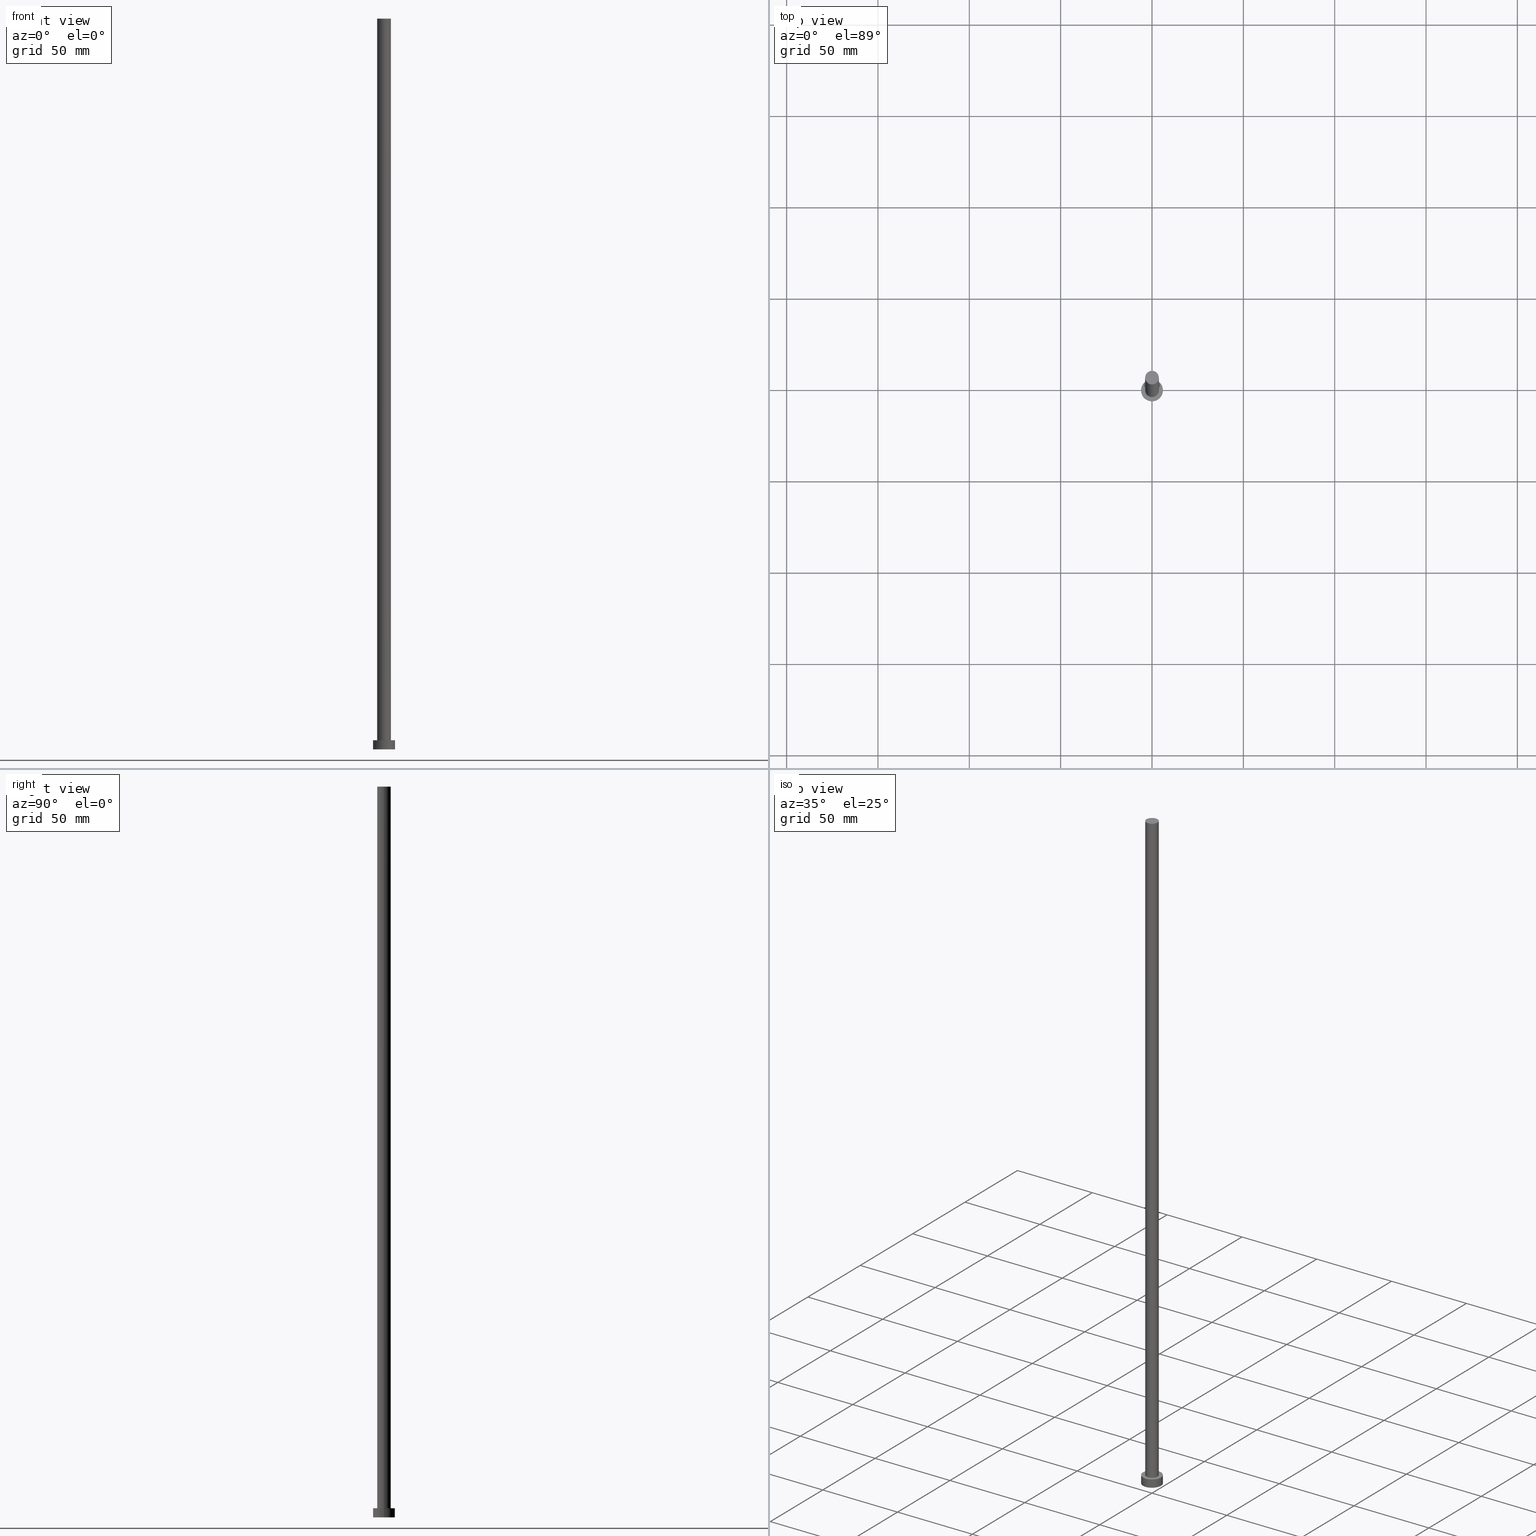
[diagram: canonical four-view strip — front | top / right | iso, engineering-drawing reading convention]
A machine part, canonical four-view strip (front | top / right | iso — engineering-drawing reading convention). The complete STEP part file that produces these views, byte-faithful:
ISO-10303-21;
HEADER;
FILE_DESCRIPTION (( 'STEP AP203' ),
    '1' );
FILE_NAME ('0a37.STEP',
    '2023-02-13T13:34:06',
    ( '' ),
    ( '' ),
    'SwSTEP 2.0',
    'SolidWorks 2019',
    '' );
FILE_SCHEMA (( 'CONFIG_CONTROL_DESIGN' ));
ENDSEC;

DATA;
#1 = EDGE_CURVE ( 'NONE', #59, #103, #189, .T. ) ;
#2 = APPLICATION_CONTEXT ( 'configuration controlled 3d designs of mechanical parts and assemblies' ) ;
#3 = EDGE_CURVE ( 'NONE', #103, #251, #114, .T. ) ;
#4 = CARTESIAN_POINT ( 'NONE',  ( 6.000000000000000888, 7.347880794884120722E-16, 5.000000000000000000 ) ) ;
#5 = LOCAL_TIME ( 14, 34, 6.000000000000000000, #243 ) ;
#6 = CARTESIAN_POINT ( 'NONE',  ( 0.000000000000000000, 0.000000000000000000, 400.0000000000000000 ) ) ;
#7 = DIRECTION ( 'NONE',  ( 1.000000000000000000, 0.000000000000000000, -0.000000000000000000 ) ) ;
#8 = FACE_OUTER_BOUND ( 'NONE', #28, .T. ) ;
#9 = APPROVAL ( #135, 'NEUR�EN�' ) ;
#10 = PERSON_AND_ORGANIZATION ( #115, #217 ) ;
#11 = ORIENTED_EDGE ( 'NONE', *, *, #215, .F. ) ;
#12 = PERSON_AND_ORGANIZATION ( #115, #217 ) ;
#13 = DIRECTION ( 'NONE',  ( 1.000000000000000000, 0.000000000000000000, 0.000000000000000000 ) ) ;
#14 = ORIENTED_EDGE ( 'NONE', *, *, #215, .T. ) ;
#15 = EDGE_LOOP ( 'NONE', ( #209, #90, #14, #186 ) ) ;
#16 = EDGE_CURVE ( 'NONE', #59, #120, #242, .T. ) ;
#17 = APPROVAL_DATE_TIME ( #195, #9 ) ;
#18 = SHAPE_DEFINITION_REPRESENTATION ( #155, #164 ) ;
#19 = CIRCLE ( 'NONE', #235, 3.750000000000000000 ) ;
#20 = CC_DESIGN_PERSON_AND_ORGANIZATION_ASSIGNMENT ( #127, #188, ( #96 ) ) ;
#21 = DIRECTION ( 'NONE',  ( 0.000000000000000000, 0.000000000000000000, 1.000000000000000000 ) ) ;
#22 = CARTESIAN_POINT ( 'NONE',  ( 6.000000000000000888, 7.347880794884120722E-16, 0.000000000000000000 ) ) ;
#23 = DIRECTION ( 'NONE',  ( -0.000000000000000000, -0.000000000000000000, -1.000000000000000000 ) ) ;
#24 = LOCAL_TIME ( 14, 34, 6.000000000000000000, #133 ) ;
#25 = EDGE_CURVE ( 'NONE', #253, #182, #187, .T. ) ;
#26 = DIRECTION ( 'NONE',  ( -0.000000000000000000, -0.000000000000000000, -1.000000000000000000 ) ) ;
#27 = CARTESIAN_POINT ( 'NONE',  ( 0.000000000000000000, 0.000000000000000000, 5.000000000000000000 ) ) ;
#28 = EDGE_LOOP ( 'NONE', ( #244, #124, #58, #11 ) ) ;
#29 = CC_DESIGN_APPROVAL ( #67, ( #96 ) ) ;
#30 = APPROVAL_ROLE ( '' ) ;
#31 = EDGE_CURVE ( 'NONE', #251, #103, #88, .T. ) ;
#32 = COORDINATED_UNIVERSAL_TIME_OFFSET ( 1, 0, .AHEAD. ) ;
#33 = DIRECTION ( 'NONE',  ( -0.000000000000000000, -0.000000000000000000, -1.000000000000000000 ) ) ;
#34 =( NAMED_UNIT ( * ) SI_UNIT ( $, .STERADIAN. ) SOLID_ANGLE_UNIT ( ) );
#35 = EDGE_LOOP ( 'NONE', ( #128, #225, #212, #72 ) ) ;
#36 = AXIS2_PLACEMENT_3D ( 'NONE', #141, #44, #158 ) ;
#37 = DIRECTION ( 'NONE',  ( 0.000000000000000000, 0.000000000000000000, 1.000000000000000000 ) ) ;
#38 = APPROVAL_PERSON_ORGANIZATION ( #216, #9, #233 ) ;
#39 = AXIS2_PLACEMENT_3D ( 'NONE', #27, #163, #7 ) ;
#40 = CC_DESIGN_APPROVAL ( #206, ( #179 ) ) ;
#41 = EDGE_CURVE ( 'NONE', #54, #110, #84, .T. ) ;
#42 = CARTESIAN_POINT ( 'NONE',  ( 0.000000000000000000, 0.000000000000000000, 400.0000000000000000 ) ) ;
#43 = AXIS2_PLACEMENT_3D ( 'NONE', #148, #208, #13 ) ;
#44 = DIRECTION ( 'NONE',  ( -0.000000000000000000, -0.000000000000000000, -1.000000000000000000 ) ) ;
#45 = CC_DESIGN_DATE_AND_TIME_ASSIGNMENT ( #113, #138, ( #95 ) ) ;
#46 = DIRECTION ( 'NONE',  ( 0.000000000000000000, 0.000000000000000000, 1.000000000000000000 ) ) ;
#47 = DIRECTION ( 'NONE',  ( 1.000000000000000000, 0.000000000000000000, -0.000000000000000000 ) ) ;
#48 = DIRECTION ( 'NONE',  ( 1.000000000000000000, 0.000000000000000000, 0.000000000000000000 ) ) ;
#49 = ORIENTED_EDGE ( 'NONE', *, *, #41, .T. ) ;
#50 = EDGE_CURVE ( 'NONE', #54, #253, #175, .T. ) ;
#51 = CALENDAR_DATE ( 2023, 13, 2 ) ;
#52 = AXIS2_PLACEMENT_3D ( 'NONE', #122, #26, #85 ) ;
#53 = APPROVAL_DATE_TIME ( #227, #67 ) ;
#54 = VERTEX_POINT ( 'NONE', #98 ) ;
#55 = AXIS2_PLACEMENT_3D ( 'NONE', #42, #224, #79 ) ;
#56 = ORIENTED_EDGE ( 'NONE', *, *, #31, .F. ) ;
#57 = DIRECTION ( 'NONE',  ( 0.000000000000000000, 0.000000000000000000, 1.000000000000000000 ) ) ;
#58 = ORIENTED_EDGE ( 'NONE', *, *, #25, .T. ) ;
#59 = VERTEX_POINT ( 'NONE', #63 ) ;
#60 = VECTOR ( 'NONE', #234, 1000.000000000000000 ) ;
#61 = CC_DESIGN_SECURITY_CLASSIFICATION ( #95, ( #96 ) ) ;
#62 = CARTESIAN_POINT ( 'NONE',  ( 0.000000000000000000, 0.000000000000000000, 0.000000000000000000 ) ) ;
#63 = CARTESIAN_POINT ( 'NONE',  ( -6.000000000000000888, 0.000000000000000000, 5.000000000000000000 ) ) ;
#64 = APPROVAL_PERSON_ORGANIZATION ( #230, #206, #30 ) ;
#65 = DIRECTION ( 'NONE',  ( 0.000000000000000000, 0.000000000000000000, 1.000000000000000000 ) ) ;
#66 = DIRECTION ( 'NONE',  ( 0.000000000000000000, 0.000000000000000000, 1.000000000000000000 ) ) ;
#67 = APPROVAL ( #68, 'NEUR�EN�' ) ;
#68 = APPROVAL_STATUS ( 'not_yet_approved' ) ;
#69 = CARTESIAN_POINT ( 'NONE',  ( -6.000000000000000888, 0.000000000000000000, 5.000000000000000000 ) ) ;
#70 = DATE_TIME_ROLE ( 'creation_date' ) ;
#71 = LOCAL_TIME ( 14, 34, 6.000000000000000000, #178 ) ;
#72 = ORIENTED_EDGE ( 'NONE', *, *, #3, .T. ) ;
#73 = PERSON_AND_ORGANIZATION_ROLE ( 'creator' ) ;
#74 = DIRECTION ( 'NONE',  ( 1.000000000000000000, 0.000000000000000000, 0.000000000000000000 ) ) ;
#75 = EDGE_LOOP ( 'NONE', ( #170, #193 ) ) ;
#76 = ADVANCED_FACE ( 'NONE', ( #8 ), #86, .T. ) ;
#77 = AXIS2_PLACEMENT_3D ( 'NONE', #94, #93, #74 ) ;
#78 = ADVANCED_FACE ( 'NONE', ( #144, #181 ), #202, .T. ) ;
#79 = DIRECTION ( 'NONE',  ( -1.000000000000000000, 0.000000000000000000, 0.000000000000000000 ) ) ;
#80 =( GEOMETRIC_REPRESENTATION_CONTEXT ( 3 ) GLOBAL_UNCERTAINTY_ASSIGNED_CONTEXT ( ( #162 ) ) GLOBAL_UNIT_ASSIGNED_CONTEXT ( ( #237, #104, #34 ) ) REPRESENTATION_CONTEXT ( 'NONE', 'WORKASPACE' ) );
#81 = CYLINDRICAL_SURFACE ( 'NONE', #167, 6.000000000000000888 ) ;
#82 = EDGE_CURVE ( 'NONE', #120, #251, #223, .T. ) ;
#83 = FACE_OUTER_BOUND ( 'NONE', #136, .T. ) ;
#84 = CIRCLE ( 'NONE', #180, 3.750000000000000000 ) ;
#85 = DIRECTION ( 'NONE',  ( -1.000000000000000000, 0.000000000000000000, 0.000000000000000000 ) ) ;
#86 = CYLINDRICAL_SURFACE ( 'NONE', #55, 3.750000000000000000 ) ;
#87 = APPLICATION_PROTOCOL_DEFINITION ( 'international standard', 'config_control_design', 1994, #2 ) ;
#88 = CIRCLE ( 'NONE', #137, 6.000000000000000888 ) ;
#89 = COORDINATED_UNIVERSAL_TIME_OFFSET ( 1, 0, .AHEAD. ) ;
#90 = ORIENTED_EDGE ( 'NONE', *, *, #168, .F. ) ;
#91 = PERSON_AND_ORGANIZATION_ROLE ( 'design_supplier' ) ;
#92 = DIRECTION ( 'NONE',  ( 0.000000000000000000, 0.000000000000000000, 1.000000000000000000 ) ) ;
#93 = DIRECTION ( 'NONE',  ( 0.000000000000000000, 0.000000000000000000, 1.000000000000000000 ) ) ;
#94 = CARTESIAN_POINT ( 'NONE',  ( 0.000000000000000000, 0.000000000000000000, 5.000000000000000000 ) ) ;
#95 = SECURITY_CLASSIFICATION ( '', '', #171 ) ;
#96 = PRODUCT_DEFINITION_FORMATION_WITH_SPECIFIED_SOURCE ( 'LIBOVOLN�', '', #214, .NOT_KNOWN. ) ;
#97 = VECTOR ( 'NONE', #161, 1000.000000000000000 ) ;
#98 = CARTESIAN_POINT ( 'NONE',  ( 3.750000000000000000, 4.592425496802572986E-16, 400.0000000000000000 ) ) ;
#99 = CARTESIAN_POINT ( 'NONE',  ( 3.750000000000000000, 4.592425496802572986E-16, 5.000000000000000000 ) ) ;
#100 = CYLINDRICAL_SURFACE ( 'NONE', #52, 6.000000000000000888 ) ;
#101 = FACE_OUTER_BOUND ( 'NONE', #15, .T. ) ;
#102 = CARTESIAN_POINT ( 'NONE',  ( -3.750000000000000000, 0.000000000000000000, 5.000000000000000000 ) ) ;
#103 = VERTEX_POINT ( 'NONE', #118 ) ;
#104 =( NAMED_UNIT ( * ) PLANE_ANGLE_UNIT ( ) SI_UNIT ( $, .RADIAN. ) );
#105 = CIRCLE ( 'NONE', #219, 3.750000000000000000 ) ;
#106 = CALENDAR_DATE ( 2023, 13, 2 ) ;
#107 = CARTESIAN_POINT ( 'NONE',  ( 0.000000000000000000, 0.000000000000000000, 5.000000000000000000 ) ) ;
#108 = ADVANCED_FACE ( 'NONE', ( #204 ), #142, .F. ) ;
#109 = CIRCLE ( 'NONE', #176, 6.000000000000000888 ) ;
#110 = VERTEX_POINT ( 'NONE', #241 ) ;
#111 = DIRECTION ( 'NONE',  ( 1.000000000000000000, 0.000000000000000000, 0.000000000000000000 ) ) ;
#112 = CC_DESIGN_PERSON_AND_ORGANIZATION_ASSIGNMENT ( #10, #166, ( #214 ) ) ;
#113 = DATE_AND_TIME ( #173, #71 ) ;
#114 = CIRCLE ( 'NONE', #43, 6.000000000000000888 ) ;
#115 = PERSON ( 'NEUR�EN�', 'NEUR�EN�', 'NEUR�EN�', ('NEUR�EN�'), ('NEUR�EN�'), ('NEUR�EN�') ) ;
#116 = CC_DESIGN_APPROVAL ( #9, ( #95 ) ) ;
#117 = EDGE_CURVE ( 'NONE', #182, #253, #105, .T. ) ;
#118 = CARTESIAN_POINT ( 'NONE',  ( -6.000000000000000888, 0.000000000000000000, 0.000000000000000000 ) ) ;
#119 = FACE_OUTER_BOUND ( 'NONE', #35, .T. ) ;
#120 = VERTEX_POINT ( 'NONE', #4 ) ;
#121 = DIRECTION ( 'NONE',  ( 0.000000000000000000, 0.000000000000000000, 1.000000000000000000 ) ) ;
#122 = CARTESIAN_POINT ( 'NONE',  ( 0.000000000000000000, 0.000000000000000000, 5.000000000000000000 ) ) ;
#123 = FACE_OUTER_BOUND ( 'NONE', #130, .T. ) ;
#124 = ORIENTED_EDGE ( 'NONE', *, *, #50, .T. ) ;
#125 = VECTOR ( 'NONE', #140, 1000.000000000000000 ) ;
#126 = DATE_AND_TIME ( #51, #5 ) ;
#127 = PERSON_AND_ORGANIZATION ( #115, #217 ) ;
#128 = ORIENTED_EDGE ( 'NONE', *, *, #82, .F. ) ;
#129 = DATE_AND_TIME ( #106, #210 ) ;
#130 = EDGE_LOOP ( 'NONE', ( #150, #165, #228, #231 ) ) ;
#131 = MECHANICAL_CONTEXT ( 'NONE', #203, 'mechanical' ) ;
#132 = LOCAL_TIME ( 14, 34, 6.000000000000000000, #32 ) ;
#133 = COORDINATED_UNIVERSAL_TIME_OFFSET ( 1, 0, .AHEAD. ) ;
#134 = CARTESIAN_POINT ( 'NONE',  ( 0.000000000000000000, 0.000000000000000000, 400.0000000000000000 ) ) ;
#135 = APPROVAL_STATUS ( 'not_yet_approved' ) ;
#136 = EDGE_LOOP ( 'NONE', ( #145, #49 ) ) ;
#137 = AXIS2_PLACEMENT_3D ( 'NONE', #249, #174, #153 ) ;
#138 = DATE_TIME_ROLE ( 'classification_date' ) ;
#139 = CC_DESIGN_PERSON_AND_ORGANIZATION_ASSIGNMENT ( #248, #152, ( #95 ) ) ;
#140 = DIRECTION ( 'NONE',  ( -0.000000000000000000, -0.000000000000000000, -1.000000000000000000 ) ) ;
#141 = CARTESIAN_POINT ( 'NONE',  ( 0.000000000000000000, 0.000000000000000000, 400.0000000000000000 ) ) ;
#142 = PLANE ( 'NONE',  #213 ) ;
#143 = CYLINDRICAL_SURFACE ( 'NONE', #36, 3.750000000000000000 ) ;
#144 = FACE_BOUND ( 'NONE', #75, .T. ) ;
#145 = ORIENTED_EDGE ( 'NONE', *, *, #168, .T. ) ;
#146 = AXIS2_PLACEMENT_3D ( 'NONE', #149, #57, #190 ) ;
#147 = CALENDAR_DATE ( 2023, 13, 2 ) ;
#148 = CARTESIAN_POINT ( 'NONE',  ( 0.000000000000000000, 0.000000000000000000, 0.000000000000000000 ) ) ;
#149 = CARTESIAN_POINT ( 'NONE',  ( 0.000000000000000000, 0.000000000000000000, 0.000000000000000000 ) ) ;
#150 = ORIENTED_EDGE ( 'NONE', *, *, #220, .F. ) ;
#151 = APPROVAL_ROLE ( '' ) ;
#152 = PERSON_AND_ORGANIZATION_ROLE ( 'classification_officer' ) ;
#153 = DIRECTION ( 'NONE',  ( 1.000000000000000000, 0.000000000000000000, 0.000000000000000000 ) ) ;
#154 = CARTESIAN_POINT ( 'NONE',  ( 3.750000000000000000, 4.592425496802572986E-16, 400.0000000000000000 ) ) ;
#155 = PRODUCT_DEFINITION_SHAPE ( 'NONE', 'NONE',  #179 ) ;
#156 = PRODUCT_RELATED_PRODUCT_CATEGORY ( 'detail', '', ( #214 ) ) ;
#157 = CC_DESIGN_PERSON_AND_ORGANIZATION_ASSIGNMENT ( #250, #73, ( #179 ) ) ;
#158 = DIRECTION ( 'NONE',  ( -1.000000000000000000, 0.000000000000000000, 0.000000000000000000 ) ) ;
#159 = DIRECTION ( 'NONE',  ( 1.000000000000000000, 0.000000000000000000, 0.000000000000000000 ) ) ;
#160 = VECTOR ( 'NONE', #33, 1000.000000000000000 ) ;
#161 = DIRECTION ( 'NONE',  ( -0.000000000000000000, -0.000000000000000000, -1.000000000000000000 ) ) ;
#162 = UNCERTAINTY_MEASURE_WITH_UNIT (LENGTH_MEASURE( 1.000000000000000082E-05 ), #237, 'distance_accuracy_value', 'NONE');
#163 = DIRECTION ( 'NONE',  ( 0.000000000000000000, 0.000000000000000000, 1.000000000000000000 ) ) ;
#164 = ADVANCED_BREP_SHAPE_REPRESENTATION ( '0a37', ( #238, #146 ), #80 ) ;
#165 = ORIENTED_EDGE ( 'NONE', *, *, #82, .T. ) ;
#166 = PERSON_AND_ORGANIZATION_ROLE ( 'design_owner' ) ;
#167 = AXIS2_PLACEMENT_3D ( 'NONE', #221, #23, #236 ) ;
#168 = EDGE_CURVE ( 'NONE', #110, #54, #19, .T. ) ;
#169 = APPROVAL_STATUS ( 'not_yet_approved' ) ;
#170 = ORIENTED_EDGE ( 'NONE', *, *, #117, .F. ) ;
#171 = SECURITY_CLASSIFICATION_LEVEL ( 'unclassified' ) ;
#172 = DIRECTION ( 'NONE',  ( 1.000000000000000000, 0.000000000000000000, 0.000000000000000000 ) ) ;
#173 = CALENDAR_DATE ( 2023, 13, 2 ) ;
#174 = DIRECTION ( 'NONE',  ( 0.000000000000000000, 0.000000000000000000, 1.000000000000000000 ) ) ;
#175 = LINE ( 'NONE', #154, #60 ) ;
#176 = AXIS2_PLACEMENT_3D ( 'NONE', #218, #21, #159 ) ;
#177 = ADVANCED_FACE ( 'NONE', ( #83 ), #222, .T. ) ;
#178 = COORDINATED_UNIVERSAL_TIME_OFFSET ( 1, 0, .AHEAD. ) ;
#179 = PRODUCT_DEFINITION ( 'NEZN�M�', '', #96, #254 ) ;
#180 = AXIS2_PLACEMENT_3D ( 'NONE', #134, #37, #111 ) ;
#181 = FACE_OUTER_BOUND ( 'NONE', #191, .T. ) ;
#182 = VERTEX_POINT ( 'NONE', #102 ) ;
#183 = CARTESIAN_POINT ( 'NONE',  ( 6.000000000000000888, 7.347880794884120722E-16, 5.000000000000000000 ) ) ;
#184 = DIRECTION ( 'NONE',  ( 1.000000000000000000, 0.000000000000000000, 0.000000000000000000 ) ) ;
#185 = CARTESIAN_POINT ( 'NONE',  ( -3.750000000000000000, 0.000000000000000000, 400.0000000000000000 ) ) ;
#186 = ORIENTED_EDGE ( 'NONE', *, *, #117, .T. ) ;
#187 = CIRCLE ( 'NONE', #77, 3.750000000000000000 ) ;
#188 = PERSON_AND_ORGANIZATION_ROLE ( 'creator' ) ;
#189 = LINE ( 'NONE', #69, #160 ) ;
#190 = DIRECTION ( 'NONE',  ( 1.000000000000000000, 0.000000000000000000, 0.000000000000000000 ) ) ;
#191 = EDGE_LOOP ( 'NONE', ( #201, #232 ) ) ;
#192 = CC_DESIGN_DATE_AND_TIME_ASSIGNMENT ( #129, #70, ( #179 ) ) ;
#193 = ORIENTED_EDGE ( 'NONE', *, *, #25, .F. ) ;
#194 = ADVANCED_FACE ( 'NONE', ( #123 ), #81, .T. ) ;
#195 = DATE_AND_TIME ( #252, #24 ) ;
#196 = CLOSED_SHELL ( 'NONE', ( #76, #194, #247, #78, #108, #200, #177 ) ) ;
#197 = AXIS2_PLACEMENT_3D ( 'NONE', #107, #92, #172 ) ;
#198 = CARTESIAN_POINT ( 'NONE',  ( 0.000000000000000000, 0.000000000000000000, 5.000000000000000000 ) ) ;
#199 = CARTESIAN_POINT ( 'NONE',  ( 0.000000000000000000, 0.000000000000000000, 400.0000000000000000 ) ) ;
#200 = ADVANCED_FACE ( 'NONE', ( #101 ), #143, .T. ) ;
#201 = ORIENTED_EDGE ( 'NONE', *, *, #16, .T. ) ;
#202 = PLANE ( 'NONE',  #39 ) ;
#203 = APPLICATION_CONTEXT ( 'configuration controlled 3d designs of mechanical parts and assemblies' ) ;
#204 = FACE_OUTER_BOUND ( 'NONE', #211, .T. ) ;
#205 = LINE ( 'NONE', #185, #125 ) ;
#206 = APPROVAL ( #169, 'NEUR�EN�' ) ;
#207 = APPROVAL_DATE_TIME ( #126, #206 ) ;
#208 = DIRECTION ( 'NONE',  ( 0.000000000000000000, 0.000000000000000000, 1.000000000000000000 ) ) ;
#209 = ORIENTED_EDGE ( 'NONE', *, *, #50, .F. ) ;
#210 = LOCAL_TIME ( 14, 34, 6.000000000000000000, #89 ) ;
#211 = EDGE_LOOP ( 'NONE', ( #246, #56 ) ) ;
#212 = ORIENTED_EDGE ( 'NONE', *, *, #1, .T. ) ;
#213 = AXIS2_PLACEMENT_3D ( 'NONE', #62, #66, #47 ) ;
#214 = PRODUCT ( '0a37', '0a37', '', ( #131 ) ) ;
#215 = EDGE_CURVE ( 'NONE', #110, #182, #205, .T. ) ;
#216 = PERSON_AND_ORGANIZATION ( #115, #217 ) ;
#217 = ORGANIZATION ( 'NEUR�EN�', 'NEUR�EN�', '' ) ;
#218 = CARTESIAN_POINT ( 'NONE',  ( 0.000000000000000000, 0.000000000000000000, 5.000000000000000000 ) ) ;
#219 = AXIS2_PLACEMENT_3D ( 'NONE', #198, #46, #184 ) ;
#220 = EDGE_CURVE ( 'NONE', #120, #59, #109, .T. ) ;
#221 = CARTESIAN_POINT ( 'NONE',  ( 0.000000000000000000, 0.000000000000000000, 5.000000000000000000 ) ) ;
#222 = PLANE ( 'NONE',  #255 ) ;
#223 = LINE ( 'NONE', #183, #97 ) ;
#224 = DIRECTION ( 'NONE',  ( -0.000000000000000000, -0.000000000000000000, -1.000000000000000000 ) ) ;
#225 = ORIENTED_EDGE ( 'NONE', *, *, #16, .F. ) ;
#226 = APPLICATION_PROTOCOL_DEFINITION ( 'international standard', 'config_control_design', 1994, #203 ) ;
#227 = DATE_AND_TIME ( #147, #132 ) ;
#228 = ORIENTED_EDGE ( 'NONE', *, *, #31, .T. ) ;
#229 = CC_DESIGN_PERSON_AND_ORGANIZATION_ASSIGNMENT ( #12, #91, ( #96 ) ) ;
#230 = PERSON_AND_ORGANIZATION ( #115, #217 ) ;
#231 = ORIENTED_EDGE ( 'NONE', *, *, #1, .F. ) ;
#232 = ORIENTED_EDGE ( 'NONE', *, *, #220, .T. ) ;
#233 = APPROVAL_ROLE ( '' ) ;
#234 = DIRECTION ( 'NONE',  ( -0.000000000000000000, -0.000000000000000000, -1.000000000000000000 ) ) ;
#235 = AXIS2_PLACEMENT_3D ( 'NONE', #6, #65, #48 ) ;
#236 = DIRECTION ( 'NONE',  ( -1.000000000000000000, 0.000000000000000000, 0.000000000000000000 ) ) ;
#237 =( LENGTH_UNIT ( ) NAMED_UNIT ( * ) SI_UNIT ( .MILLI., .METRE. ) );
#238 = MANIFOLD_SOLID_BREP ( 'P�idat vysunut�m3', #196 ) ;
#239 = DIRECTION ( 'NONE',  ( 1.000000000000000000, 0.000000000000000000, -0.000000000000000000 ) ) ;
#240 = APPROVAL_PERSON_ORGANIZATION ( #245, #67, #151 ) ;
#241 = CARTESIAN_POINT ( 'NONE',  ( -3.750000000000000000, 0.000000000000000000, 400.0000000000000000 ) ) ;
#242 = CIRCLE ( 'NONE', #197, 6.000000000000000888 ) ;
#243 = COORDINATED_UNIVERSAL_TIME_OFFSET ( 1, 0, .AHEAD. ) ;
#244 = ORIENTED_EDGE ( 'NONE', *, *, #41, .F. ) ;
#245 = PERSON_AND_ORGANIZATION ( #115, #217 ) ;
#246 = ORIENTED_EDGE ( 'NONE', *, *, #3, .F. ) ;
#247 = ADVANCED_FACE ( 'NONE', ( #119 ), #100, .T. ) ;
#248 = PERSON_AND_ORGANIZATION ( #115, #217 ) ;
#249 = CARTESIAN_POINT ( 'NONE',  ( 0.000000000000000000, 0.000000000000000000, 0.000000000000000000 ) ) ;
#250 = PERSON_AND_ORGANIZATION ( #115, #217 ) ;
#251 = VERTEX_POINT ( 'NONE', #22 ) ;
#252 = CALENDAR_DATE ( 2023, 13, 2 ) ;
#253 = VERTEX_POINT ( 'NONE', #99 ) ;
#254 = DESIGN_CONTEXT ( 'detailed design', #2, 'design' ) ;
#255 = AXIS2_PLACEMENT_3D ( 'NONE', #199, #121, #239 ) ;
ENDSEC;
END-ISO-10303-21;
